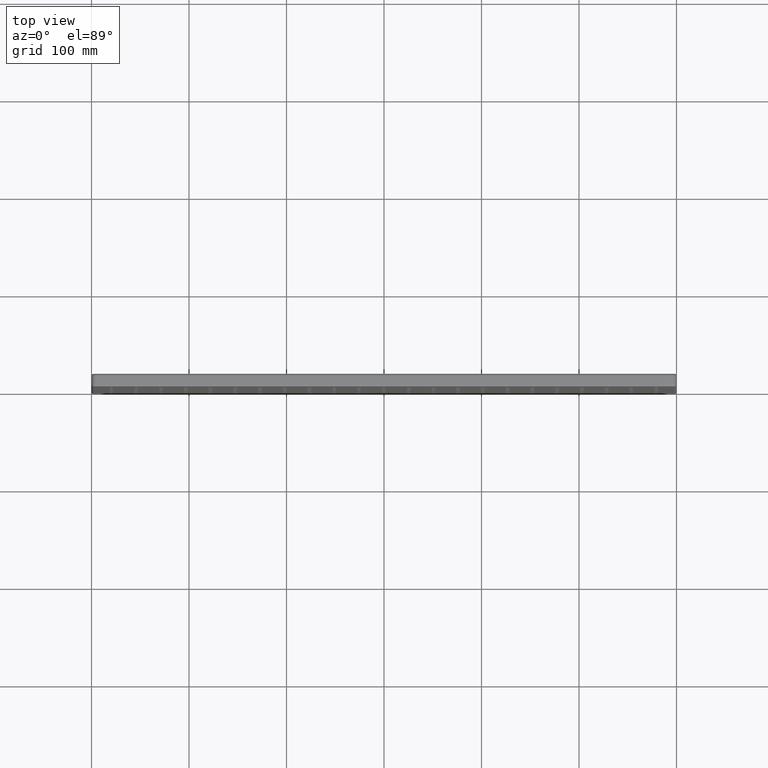
[diagram: clean part render]
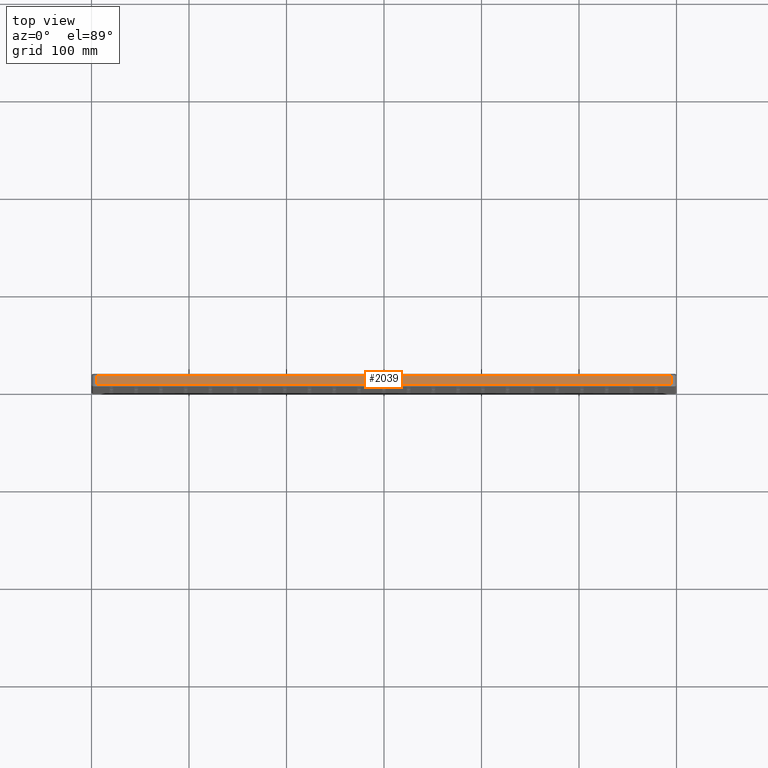
[diagram: same view with one face highlighted and labeled with its STEP entity id]
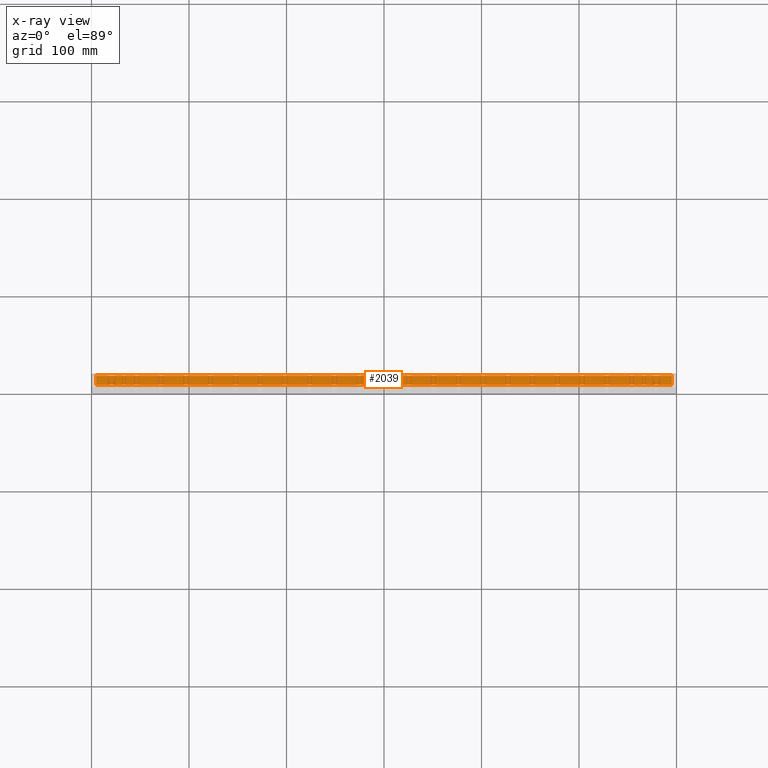
[diagram: x-ray of the same camera — body ghosted, the highlighted face saturated]
A machine part, top view. The second image highlights one B-rep face of the part: STEP entity #2039.
The next image is the same camera in x-ray: the body ghosted, the highlighted face saturated — about 0% of this face is hidden behind the body in this view.
In plain terms, the highlighted planar face has unit normal (0, 0, -1).
Its self-contained STEP definition (entity closure, byte-faithful):
#1115 = VECTOR ( 'NONE', #26326, 1000.000000000000000 ) ;
#1682 = CARTESIAN_POINT ( 'NONE',  ( -295.0000000000000000, 13.00000000000000000, 225.0000000000000300 ) ) ;
#2039 = ADVANCED_FACE ( 'NONE', ( #18005 ), #27639, .F. ) ;
#2273 = EDGE_CURVE ( 'NONE', #3420, #5430, #13198, .T. ) ;
#2748 = CARTESIAN_POINT ( 'NONE',  ( -295.0000000000000000, 2.000000000000000000, 225.0000000000000300 ) ) ;
#3420 = VERTEX_POINT ( 'NONE', #20161 ) ;
#3422 = ORIENTED_EDGE ( 'NONE', *, *, #2273, .F. ) ;
#4484 = AXIS2_PLACEMENT_3D ( 'NONE', #1682, #27257, #25193 ) ;
#5094 = EDGE_CURVE ( 'NONE', #28077, #5430, #21053, .T. ) ;
#5430 = VERTEX_POINT ( 'NONE', #10496 ) ;
#6296 = VERTEX_POINT ( 'NONE', #29162 ) ;
#6404 = EDGE_CURVE ( 'NONE', #3420, #6296, #24655, .T. ) ;
#7244 = CARTESIAN_POINT ( 'NONE',  ( 295.0000000000000000, 13.00000000000000000, 224.9999999999999100 ) ) ;
#7458 = CARTESIAN_POINT ( 'NONE',  ( -295.0000000000000000, 13.00000000000000000, 225.0000000000000300 ) ) ;
#9072 = ORIENTED_EDGE ( 'NONE', *, *, #6404, .T. ) ;
#10496 = CARTESIAN_POINT ( 'NONE',  ( 295.0000000000000000, 2.000000000000003600, 224.9999999999999100 ) ) ;
#11724 = DIRECTION ( 'NONE',  ( -0.0000000000000000000, -1.000000000000000000, -0.0000000000000000000 ) ) ;
#13124 = DIRECTION ( 'NONE',  ( -1.000000000000000000, -0.0000000000000000000, -0.0000000000000000000 ) ) ;
#13198 = LINE ( 'NONE', #7244, #21347 ) ;
#13800 = EDGE_CURVE ( 'NONE', #6296, #28077, #16456, .T. ) ;
#16456 = LINE ( 'NONE', #7458, #22017 ) ;
#16525 = EDGE_LOOP ( 'NONE', ( #25009, #26393, #3422, #9072 ) ) ;
#18005 = FACE_OUTER_BOUND ( 'NONE', #16525, .T. ) ;
#18351 = VECTOR ( 'NONE', #13124, 1000.000000000000000 ) ;
#20161 = CARTESIAN_POINT ( 'NONE',  ( 295.0000000000000000, 11.00000000000000000, 224.9999999999999100 ) ) ;
#21053 = LINE ( 'NONE', #2748, #1115 ) ;
#21347 = VECTOR ( 'NONE', #11724, 1000.000000000000000 ) ;
#22017 = VECTOR ( 'NONE', #23947, 1000.000000000000000 ) ;
#23947 = DIRECTION ( 'NONE',  ( -0.0000000000000000000, -1.000000000000000000, -0.0000000000000000000 ) ) ;
#24655 = LINE ( 'NONE', #27092, #18351 ) ;
#25009 = ORIENTED_EDGE ( 'NONE', *, *, #13800, .T. ) ;
#25193 = DIRECTION ( 'NONE',  ( -1.000000000000000000, 0.0000000000000000000, -0.0000000000000000000 ) ) ;
#26326 = DIRECTION ( 'NONE',  ( 1.000000000000000000, -0.0000000000000000000, 0.0000000000000000000 ) ) ;
#26393 = ORIENTED_EDGE ( 'NONE', *, *, #5094, .T. ) ;
#27092 = CARTESIAN_POINT ( 'NONE',  ( -295.0000000000000000, 11.00000000000000000, 225.0000000000000300 ) ) ;
#27257 = DIRECTION ( 'NONE',  ( 0.0000000000000000000, 0.0000000000000000000, -1.000000000000000000 ) ) ;
#27639 = PLANE ( 'NONE',  #4484 ) ;
#28077 = VERTEX_POINT ( 'NONE', #29351 ) ;
#29162 = CARTESIAN_POINT ( 'NONE',  ( -295.0000000000000000, 11.00000000000000000, 225.0000000000000300 ) ) ;
#29351 = CARTESIAN_POINT ( 'NONE',  ( -295.0000000000000000, 2.000000000000003600, 225.0000000000000300 ) ) ;